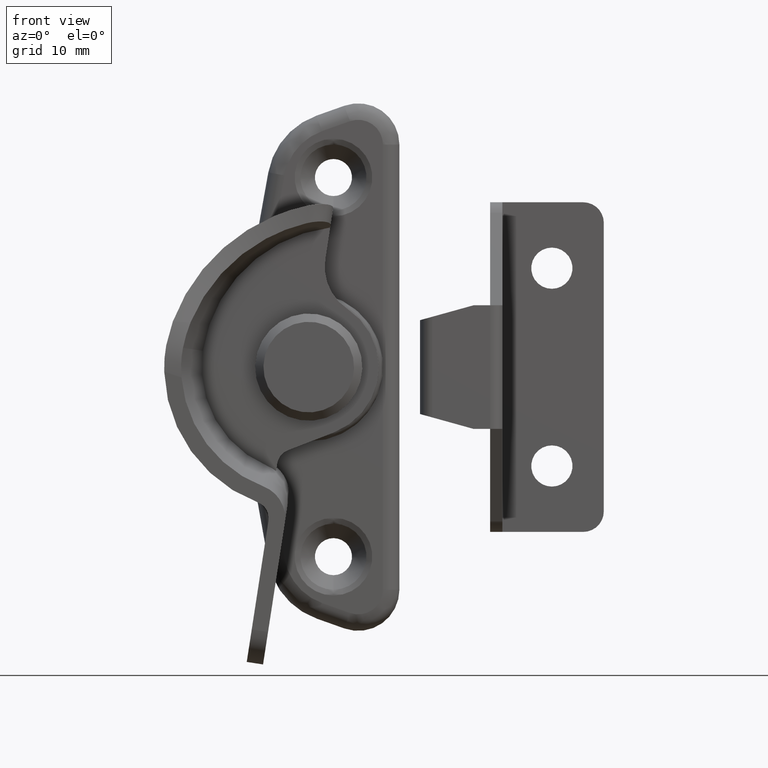
[diagram: clean part render]
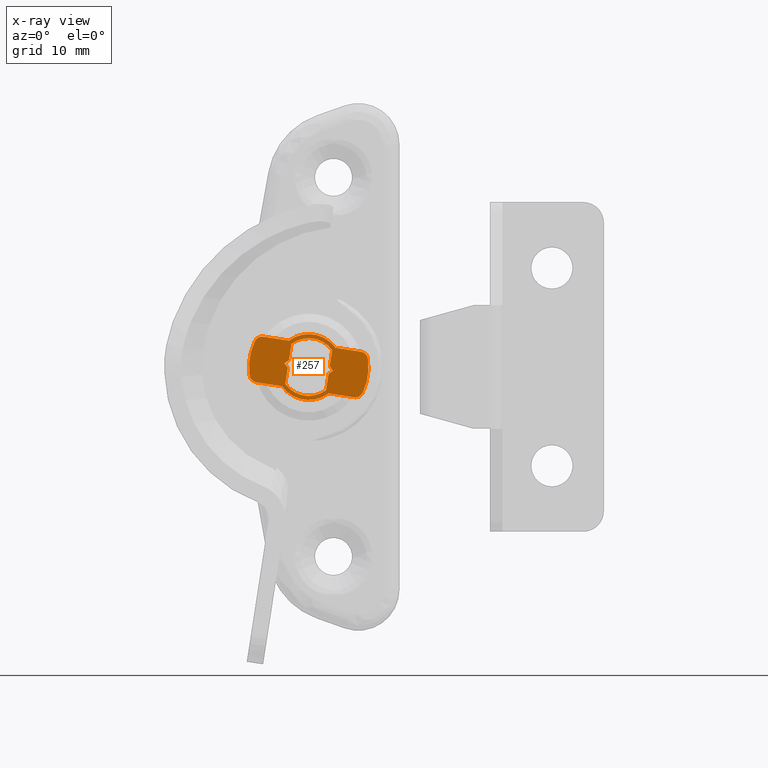
[diagram: x-ray — body ghosted, one internal face saturated and labeled with its STEP entity id]
A machine part, front view, then the same camera in x-ray: the body is ghosted and one INTERNAL B-rep face — a face not visible from any outside direction — is saturated and labeled: STEP entity #257.
In plain terms, the highlighted planar face has unit normal (0, 1, 0).
Its self-contained STEP definition (entity closure, byte-faithful):
#257=ADVANCED_FACE('',(#1117,#1118),#1116,.F.);
#1116=PLANE('',#3106);
#1117=FACE_OUTER_BOUND('',#3107,.T.);
#1118=FACE_BOUND('',#3108,.T.);
#3103=CARTESIAN_POINT('',(-1.40517494774E+01,3.20000000000E+00,-8.08957152702E+00));
#3104=DIRECTION('',(0.00000000000E+00,1.00000000000E+00,0.00000000000E+00));
#3105=DIRECTION('',(-9.88393614580E-01,0.00000000000E+00,1.51914655832E-01));
#3106=AXIS2_PLACEMENT_3D('',#3103,#3104,#3105);
#3107=EDGE_LOOP('',(#4847,#4848,#4849,#4850,#4851,#4852,#4853,#4854,#4855,#4856,#4857,#4858,#4859,#4860,#4861,#4862));
#3108=EDGE_LOOP('',(#4863,#4864,#4865,#4866,#4867,#4868,#4869,#4870,#4871,#4872));
#4847=ORIENTED_EDGE('',*,*,#5782,.F.);
#4848=ORIENTED_EDGE('',*,*,#5783,.F.);
#4849=ORIENTED_EDGE('',*,*,#5717,.F.);
#4850=ORIENTED_EDGE('',*,*,#5784,.T.);
#4851=ORIENTED_EDGE('',*,*,#5785,.T.);
#4852=ORIENTED_EDGE('',*,*,#5666,.F.);
#4853=ORIENTED_EDGE('',*,*,#5663,.F.);
#4854=ORIENTED_EDGE('',*,*,#5670,.F.);
#4855=ORIENTED_EDGE('',*,*,#5786,.F.);
#4856=ORIENTED_EDGE('',*,*,#5787,.F.);
#4857=ORIENTED_EDGE('',*,*,#5788,.F.);
#4858=ORIENTED_EDGE('',*,*,#5789,.T.);
#4859=ORIENTED_EDGE('',*,*,#5790,.T.);
#4860=ORIENTED_EDGE('',*,*,#5679,.F.);
#4861=ORIENTED_EDGE('',*,*,#5673,.F.);
#4862=ORIENTED_EDGE('',*,*,#5677,.F.);
#4863=ORIENTED_EDGE('',*,*,#5777,.F.);
#4864=ORIENTED_EDGE('',*,*,#5773,.T.);
#4865=ORIENTED_EDGE('',*,*,#5775,.T.);
#4866=ORIENTED_EDGE('',*,*,#5743,.F.);
#4867=ORIENTED_EDGE('',*,*,#5741,.F.);
#4868=ORIENTED_EDGE('',*,*,#5739,.F.);
#4869=ORIENTED_EDGE('',*,*,#5776,.T.);
#4870=ORIENTED_EDGE('',*,*,#5770,.T.);
#4871=ORIENTED_EDGE('',*,*,#5780,.F.);
#4872=ORIENTED_EDGE('',*,*,#5781,.F.);
#5663=EDGE_CURVE('',#6744,#6751,#6752,.T.);
#5666=EDGE_CURVE('',#6751,#6771,#6772,.T.);
#5670=EDGE_CURVE('',#6791,#6744,#6798,.T.);
#5673=EDGE_CURVE('',#6812,#6819,#6820,.T.);
#5677=EDGE_CURVE('',#6839,#6812,#6846,.T.);
#5679=EDGE_CURVE('',#6819,#6859,#6860,.T.);
#5717=EDGE_CURVE('',#7113,#7120,#7121,.T.);
#5739=EDGE_CURVE('',#7256,#7263,#7264,.T.);
#5741=EDGE_CURVE('',#7263,#7276,#7277,.T.);
#5743=EDGE_CURVE('',#7276,#7289,#7290,.T.);
#5770=EDGE_CURVE('',#7464,#7457,#7465,.T.);
#5773=EDGE_CURVE('',#7484,#7477,#7485,.T.);
#5775=EDGE_CURVE('',#7477,#7289,#7497,.T.);
#5776=EDGE_CURVE('',#7256,#7464,#7503,.T.);
#5777=EDGE_CURVE('',#7484,#7509,#7510,.T.);
#5780=EDGE_CURVE('',#7522,#7457,#7529,.T.);
#5781=EDGE_CURVE('',#7509,#7522,#7535,.T.);
#5782=EDGE_CURVE('',#7541,#6839,#7542,.T.);
#5783=EDGE_CURVE('',#7120,#7541,#7548,.T.);
#5784=EDGE_CURVE('',#7113,#7554,#7555,.T.);
#5785=EDGE_CURVE('',#7554,#6771,#7561,.T.);
#5786=EDGE_CURVE('',#7567,#6791,#7568,.T.);
#5787=EDGE_CURVE('',#7574,#7567,#7575,.T.);
#5788=EDGE_CURVE('',#7581,#7574,#7582,.T.);
#5789=EDGE_CURVE('',#7581,#7588,#7589,.T.);
#5790=EDGE_CURVE('',#7588,#6859,#7595,.T.);
#6744=VERTEX_POINT('',#10265);
#6751=VERTEX_POINT('',#10269);
#6752=CIRCLE('',#10273,7.25000000000E+00);
#6771=VERTEX_POINT('',#10282);
#6772=CIRCLE('',#10286,1.00000000000E+00);
#6791=VERTEX_POINT('',#10295);
#6798=CIRCLE('',#10302,1.00000000000E+00);
#6812=VERTEX_POINT('',#10309);
#6819=VERTEX_POINT('',#10313);
#6820=CIRCLE('',#10317,7.25000000000E+00);
#6839=VERTEX_POINT('',#10326);
#6846=CIRCLE('',#10333,1.00000000000E+00);
#6859=VERTEX_POINT('',#10339);
#6860=CIRCLE('',#10343,1.00000000000E+00);
#7113=VERTEX_POINT('',#10496);
#7120=VERTEX_POINT('',#10501);
#7121=CIRCLE('',#10505,4.00000000000E+00);
#7256=VERTEX_POINT('',#10583);
#7263=VERTEX_POINT('',#10587);
#7264=LINE('',#10588,#10589);
#7276=VERTEX_POINT('',#10594);
#7277=CIRCLE('',#10598,3.50000000000E+00);
#7289=VERTEX_POINT('',#10602);
#7290=LINE('',#10603,#10604);
#7457=VERTEX_POINT('',#10704);
#7464=VERTEX_POINT('',#10708);
#7465=LINE('',#10709,#10710);
#7477=VERTEX_POINT('',#10715);
#7484=VERTEX_POINT('',#10719);
#7485=LINE('',#10720,#10721);
#7497=LINE('',#10726,#10727);
#7503=LINE('',#10729,#10730);
#7509=VERTEX_POINT('',#10732);
#7510=LINE('',#10733,#10734);
#7522=VERTEX_POINT('',#10739);
#7529=LINE('',#10743,#10744);
#7535=CIRCLE('',#10749,3.50000000000E+00);
#7541=VERTEX_POINT('',#10750);
#7542=LINE('',#10751,#10752);
#7548=LINE('',#10754,#10755);
#7554=VERTEX_POINT('',#10757);
#7555=LINE('',#10758,#10759);
#7561=LINE('',#10761,#10762);
#7567=VERTEX_POINT('',#10764);
#7568=LINE('',#10765,#10766);
#7574=VERTEX_POINT('',#10768);
#7575=LINE('',#10769,#10770);
#7581=VERTEX_POINT('',#10772);
#7582=CIRCLE('',#10776,4.00000000000E+00);
#7588=VERTEX_POINT('',#10777);
#7589=LINE('',#10778,#10779);
#7595=LINE('',#10781,#10782);
#10265=CARTESIAN_POINT('',(-2.91794372156E+01,3.20000000000E+00,-1.00904968588E+00));
#10269=CARTESIAN_POINT('',(-2.85450416129E+01,3.20000000000E+00,3.11848204861E+00));
#10270=CARTESIAN_POINT('',(-2.20000000001E+01,3.20000000000E+00,2.10356686765E-11));
#10271=DIRECTION('',(0.00000000000E+00,1.00000000000E+00,0.00000000000E+00));
#10272=DIRECTION('',(-9.90267202139E-01,0.00000000000E+00,-1.39179267021E-01));
#10273=AXIS2_PLACEMENT_3D('',#10270,#10271,#10272);
#10282=CARTESIAN_POINT('',(-2.74903625967E+01,3.20000000000E+00,3.67674020821E+00));
#10283=CARTESIAN_POINT('',(-2.76422772525E+01,3.20000000000E+00,2.68834659363E+00));
#10284=DIRECTION('',(0.00000000000E+00,1.00000000000E+00,0.00000000000E+00));
#10285=DIRECTION('',(-9.88393614580E-01,-0.00000000000E+00,1.51914655832E-01));
#10286=AXIS2_PLACEMENT_3D('',#10283,#10284,#10285);
#10295=CARTESIAN_POINT('',(-2.83410846693E+01,3.20000000000E+00,-1.85826403344E+00));
#10299=CARTESIAN_POINT('',(-2.81891700135E+01,3.20000000000E+00,-8.69870418858E-01));
#10300=DIRECTION('',(0.00000000000E+00,1.00000000000E+00,0.00000000000E+00));
#10301=DIRECTION('',(-9.88393614580E-01,-0.00000000000E+00,1.51914655832E-01));
#10302=AXIS2_PLACEMENT_3D('',#10299,#10300,#10301);
#10309=CARTESIAN_POINT('',(-1.48205627846E+01,3.20000000000E+00,1.00904968592E+00));
#10313=CARTESIAN_POINT('',(-1.54549583874E+01,3.20000000000E+00,-3.11848204857E+00));
#10314=CARTESIAN_POINT('',(-2.20000000001E+01,3.20000000000E+00,2.10356686765E-11));
#10315=DIRECTION('',(0.00000000000E+00,1.00000000000E+00,0.00000000000E+00));
#10316=DIRECTION('',(-9.88393614580E-01,-0.00000000000E+00,1.51914655832E-01));
#10317=AXIS2_PLACEMENT_3D('',#10314,#10315,#10316);
#10326=CARTESIAN_POINT('',(-1.56589153309E+01,3.20000000000E+00,1.85826403348E+00));
#10330=CARTESIAN_POINT('',(-1.58108299868E+01,3.20000000000E+00,8.69870418900E-01));
#10331=DIRECTION('',(0.00000000000E+00,1.00000000000E+00,0.00000000000E+00));
#10332=DIRECTION('',(-9.88393614580E-01,-0.00000000000E+00,1.51914655832E-01));
#10333=AXIS2_PLACEMENT_3D('',#10330,#10331,#10332);
#10339=CARTESIAN_POINT('',(-1.65096374036E+01,3.20000000000E+00,-3.67674020817E+00));
#10340=CARTESIAN_POINT('',(-1.63577227478E+01,3.20000000000E+00,-2.68834659359E+00));
#10341=DIRECTION('',(0.00000000000E+00,1.00000000000E+00,0.00000000000E+00));
#10342=DIRECTION('',(-9.88393614580E-01,-0.00000000000E+00,1.51914655832E-01));
#10343=AXIS2_PLACEMENT_3D('',#10340,#10341,#10342);
#10496=CARTESIAN_POINT('',(-2.43659197763E+01,3.20000000000E+00,3.22527884263E+00));
#10501=CARTESIAN_POINT('',(-1.87747211575E+01,3.20000000000E+00,2.36591977622E+00));
#10502=CARTESIAN_POINT('',(-2.20000000001E+01,3.20000000000E+00,2.10356686765E-11));
#10503=DIRECTION('',(0.00000000000E+00,1.00000000000E+00,-0.00000000000E+00));
#10504=DIRECTION('',(9.88393614580E-01,-0.00000000000E+00,-1.51914655832E-01));
#10505=AXIS2_PLACEMENT_3D('',#10502,#10503,#10504);
#10583=CARTESIAN_POINT('',(-2.45423609068E+01,3.20000000000E+00,-8.46085989018E-02));
#10587=CARTESIAN_POINT('',(-2.48430974278E+01,3.20000000000E+00,-2.04127338122E+00));
#10588=CARTESIAN_POINT('',(-2.45423609068E+01,3.20000000000E+00,-8.46085989018E-02));
#10589=VECTOR('',#10590,1.97964126180E+00);
#10590=DIRECTION('',(-1.51914655832E-01,0.00000000000E+00,-9.88393614580E-01));
#10594=CARTESIAN_POINT('',(-1.99011293549E+01,3.20000000000E+00,-2.80084666039E+00));
#10595=CARTESIAN_POINT('',(-2.20000000001E+01,3.20000000000E+00,-5.79301515429E-11));
#10596=DIRECTION('',(0.00000000000E+00,-1.00000000000E+00,0.00000000000E+00));
#10597=DIRECTION('',(-8.12313550769E-01,-0.00000000000E+00,-5.83220966048E-01));
#10598=AXIS2_PLACEMENT_3D('',#10595,#10596,#10597);
#10602=CARTESIAN_POINT('',(-1.96003928339E+01,3.20000000000E+00,-8.44181877926E-01));
#10603=CARTESIAN_POINT('',(-1.99011293549E+01,3.20000000000E+00,-2.80084666039E+00));
#10604=VECTOR('',#10605,1.97964126194E+00);
#10605=DIRECTION('',(1.51914655832E-01,0.00000000000E+00,9.88393614580E-01));
#10704=CARTESIAN_POINT('',(-2.43996071662E+01,3.20000000000E+00,8.44181878084E-01));
#10708=CARTESIAN_POINT('',(-2.49353792750E+01,3.20000000000E+00,4.51163509883E-01));
#10709=CARTESIAN_POINT('',(-2.49353792750E+01,3.20000000000E+00,4.51163509883E-01));
#10710=VECTOR('',#10711,6.64466094165E-01);
#10711=DIRECTION('',(8.06319710652E-01,0.00000000000E+00,5.91479944051E-01));
#10715=CARTESIAN_POINT('',(-1.90646207253E+01,3.20000000000E+00,-4.51163509842E-01));
#10719=CARTESIAN_POINT('',(-1.94576390933E+01,3.20000000000E+00,8.46085987859E-02));
#10720=CARTESIAN_POINT('',(-1.94576390933E+01,3.20000000000E+00,8.46085987859E-02));
#10721=VECTOR('',#10722,6.64466093970E-01);
#10722=DIRECTION('',(5.91479944051E-01,0.00000000000E+00,-8.06319710652E-01));
#10726=CARTESIAN_POINT('',(-1.90646207253E+01,3.20000000000E+00,-4.51163509842E-01));
#10727=VECTOR('',#10728,6.64466093969E-01);
#10728=DIRECTION('',(-8.06319710652E-01,0.00000000000E+00,-5.91479944051E-01));
#10729=CARTESIAN_POINT('',(-2.45423609068E+01,3.20000000000E+00,-8.46085989018E-02));
#10730=VECTOR('',#10731,6.64466094165E-01);
#10731=DIRECTION('',(-5.91479944051E-01,0.00000000000E+00,8.06319710652E-01));
#10732=CARTESIAN_POINT('',(-1.91569025724E+01,3.20000000000E+00,2.04127338111E+00));
#10733=CARTESIAN_POINT('',(-1.94576390933E+01,3.20000000000E+00,8.46085987859E-02));
#10734=VECTOR('',#10735,1.97964126180E+00);
#10735=DIRECTION('',(1.51914655832E-01,0.00000000000E+00,9.88393614580E-01));
#10739=CARTESIAN_POINT('',(-2.40988706453E+01,3.20000000000E+00,2.80084666027E+00));
#10743=CARTESIAN_POINT('',(-2.40988706453E+01,3.20000000000E+00,2.80084666027E+00));
#10744=VECTOR('',#10745,1.97964126166E+00);
#10745=DIRECTION('',(-1.51914655832E-01,0.00000000000E+00,-9.88393614580E-01));
#10746=CARTESIAN_POINT('',(-2.20000000001E+01,3.20000000000E+00,-5.79301515429E-11));
#10747=DIRECTION('',(0.00000000000E+00,-1.00000000000E+00,0.00000000000E+00));
#10748=DIRECTION('',(-1.51914655832E-01,-0.00000000000E+00,-9.88393614580E-01));
#10749=AXIS2_PLACEMENT_3D('',#10746,#10747,#10748);
#10750=CARTESIAN_POINT('',(-1.88071368430E+01,3.20000000000E+00,2.34214108452E+00));
#10751=CARTESIAN_POINT('',(-1.88071368430E+01,3.20000000000E+00,2.34214108452E+00));
#10752=VECTOR('',#10753,3.18519005546E+00);
#10753=DIRECTION('',(9.88393614580E-01,0.00000000000E+00,-1.51914655832E-01));
#10754=CARTESIAN_POINT('',(-1.87747211575E+01,3.20000000000E+00,2.36591977622E+00));
#10755=VECTOR('',#10756,4.02020253552E-02);
#10756=DIRECTION('',(-8.06319710652E-01,0.00000000000E+00,-5.91479944051E-01));
#10757=CARTESIAN_POINT('',(-2.43421410846E+01,3.20000000000E+00,3.19286315718E+00));
#10758=CARTESIAN_POINT('',(-2.43659197763E+01,3.20000000000E+00,3.22527884263E+00));
#10759=VECTOR('',#10760,4.02020253552E-02);
#10760=DIRECTION('',(5.91479944051E-01,0.00000000000E+00,-8.06319710652E-01));
#10761=CARTESIAN_POINT('',(-2.43421410846E+01,3.20000000000E+00,3.19286315718E+00));
#10762=VECTOR('',#10763,3.18519005546E+00);
#10763=DIRECTION('',(-9.88393614580E-01,0.00000000000E+00,1.51914655832E-01));
#10764=CARTESIAN_POINT('',(-2.51928631573E+01,3.20000000000E+00,-2.34214108447E+00));
#10765=CARTESIAN_POINT('',(-2.51928631573E+01,3.20000000000E+00,-2.34214108447E+00));
#10766=VECTOR('',#10767,3.18519005546E+00);
#10767=DIRECTION('',(-9.88393614580E-01,0.00000000000E+00,1.51914655832E-01));
#10768=CARTESIAN_POINT('',(-2.52252788427E+01,3.20000000000E+00,-2.36591977618E+00));
#10769=CARTESIAN_POINT('',(-2.52252788427E+01,3.20000000000E+00,-2.36591977618E+00));
#10770=VECTOR('',#10771,4.02020253552E-02);
#10771=DIRECTION('',(8.06319710652E-01,0.00000000000E+00,5.91479944051E-01));
#10772=CARTESIAN_POINT('',(-1.96340802239E+01,3.20000000000E+00,-3.22527884259E+00));
#10773=CARTESIAN_POINT('',(-2.20000000001E+01,3.20000000000E+00,2.10356686765E-11));
#10774=DIRECTION('',(0.00000000000E+00,1.00000000000E+00,-0.00000000000E+00));
#10775=DIRECTION('',(9.88393614580E-01,-0.00000000000E+00,-1.51914655832E-01));
#10776=AXIS2_PLACEMENT_3D('',#10773,#10774,#10775);
#10777=CARTESIAN_POINT('',(-1.96578589156E+01,3.20000000000E+00,-3.19286315713E+00));
#10778=CARTESIAN_POINT('',(-1.96340802239E+01,3.20000000000E+00,-3.22527884259E+00));
#10779=VECTOR('',#10780,4.02020253552E-02);
#10780=DIRECTION('',(-5.91479944051E-01,0.00000000000E+00,8.06319710652E-01));
#10781=CARTESIAN_POINT('',(-1.96578589156E+01,3.20000000000E+00,-3.19286315713E+00));
#10782=VECTOR('',#10783,3.18519005546E+00);
#10783=DIRECTION('',(9.88393614580E-01,0.00000000000E+00,-1.51914655832E-01));